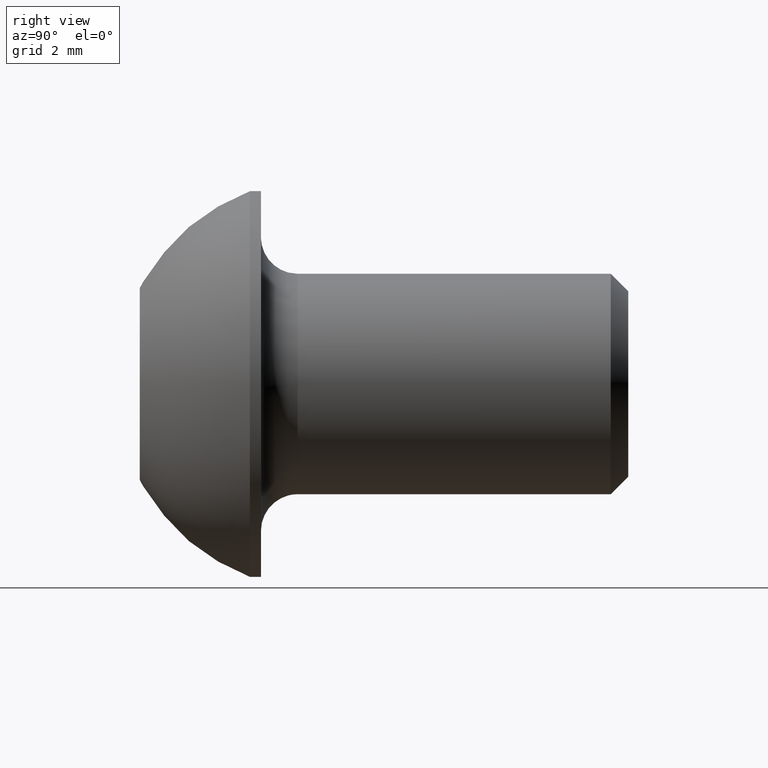
[diagram: clean part render]
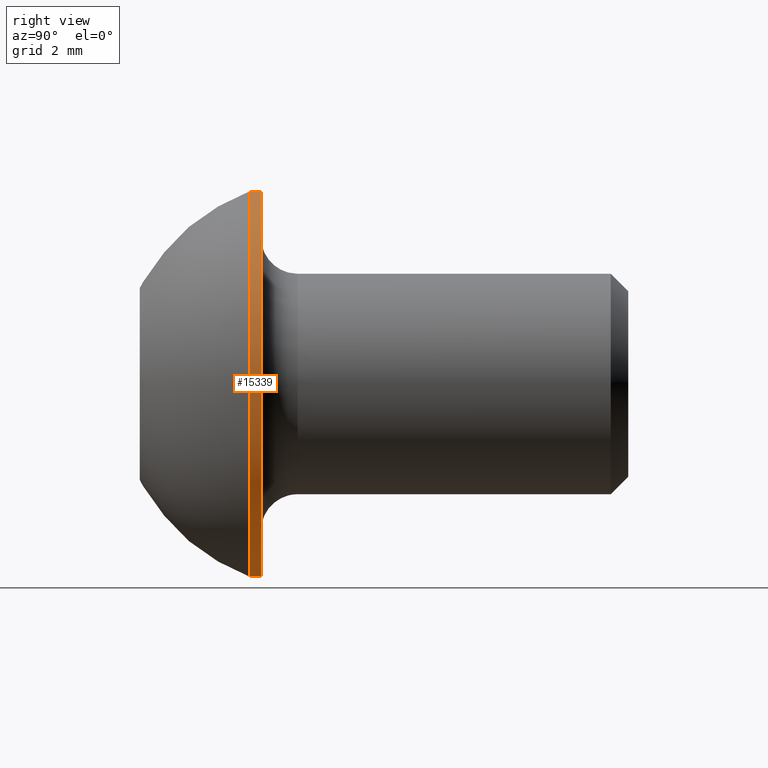
[diagram: same view with one face highlighted and labeled with its STEP entity id]
A machine part, right view. The second image highlights one B-rep face of the part: STEP entity #15339.
In plain terms, the highlighted cylindrical surface (bore or boss wall) has radius 5.25 mm, axis along (-0, -1, -0).
Its self-contained STEP definition (entity closure, byte-faithful):
#135 = CARTESIAN_POINT ( 'NONE',  ( 0.0000000000000000000, 3.299999999999999800, 0.0000000000000000000 ) ) ;
#585 = VERTEX_POINT ( 'NONE', #8409 ) ;
#688 = AXIS2_PLACEMENT_3D ( 'NONE', #135, #3709, #4903 ) ;
#894 = AXIS2_PLACEMENT_3D ( 'NONE', #13658, #13762, #1633 ) ;
#914 = DIRECTION ( 'NONE',  ( -0.0000000000000000000, -1.000000000000000000, -0.0000000000000000000 ) ) ;
#1633 = DIRECTION ( 'NONE',  ( 0.0000000000000000000, 0.0000000000000000000, -1.000000000000000000 ) ) ;
#2100 = CYLINDRICAL_SURFACE ( 'NONE', #894, 5.249999999999999100 ) ;
#2513 = CIRCLE ( 'NONE', #688, 5.249999999999999100 ) ;
#3709 = DIRECTION ( 'NONE',  ( -0.0000000000000000000, -1.000000000000000000, -0.0000000000000000000 ) ) ;
#4514 = DIRECTION ( 'NONE',  ( 0.0000000000000000000, 0.0000000000000000000, -1.000000000000000000 ) ) ;
#4707 = FACE_OUTER_BOUND ( 'NONE', #7147, .T. ) ;
#4903 = DIRECTION ( 'NONE',  ( 0.0000000000000000000, 0.0000000000000000000, -1.000000000000000000 ) ) ;
#7147 = EDGE_LOOP ( 'NONE', ( #13764 ) ) ;
#7977 = AXIS2_PLACEMENT_3D ( 'NONE', #10479, #914, #4514 ) ;
#8409 = CARTESIAN_POINT ( 'NONE',  ( 0.0000000000000000000, 3.000000000000000000, -5.249999999999999100 ) ) ;
#10391 = CIRCLE ( 'NONE', #7977, 5.249999999999999100 ) ;
#10479 = CARTESIAN_POINT ( 'NONE',  ( 0.0000000000000000000, 3.000000000000000000, 0.0000000000000000000 ) ) ;
#10486 = ORIENTED_EDGE ( 'NONE', *, *, #11754, .F. ) ;
#10878 = VERTEX_POINT ( 'NONE', #14494 ) ;
#11077 = FACE_OUTER_BOUND ( 'NONE', #14993, .T. ) ;
#11754 = EDGE_CURVE ( 'NONE', #585, #585, #10391, .T. ) ;
#12358 = EDGE_CURVE ( 'NONE', #10878, #10878, #2513, .T. ) ;
#13658 = CARTESIAN_POINT ( 'NONE',  ( 0.0000000000000000000, 0.0000000000000000000, 0.0000000000000000000 ) ) ;
#13762 = DIRECTION ( 'NONE',  ( -0.0000000000000000000, -1.000000000000000000, -0.0000000000000000000 ) ) ;
#13764 = ORIENTED_EDGE ( 'NONE', *, *, #12358, .T. ) ;
#14494 = CARTESIAN_POINT ( 'NONE',  ( 0.0000000000000000000, 3.299999999999999800, -5.249999999999999100 ) ) ;
#14993 = EDGE_LOOP ( 'NONE', ( #10486 ) ) ;
#15339 = ADVANCED_FACE ( 'NONE', ( #11077, #4707 ), #2100, .T. ) ;